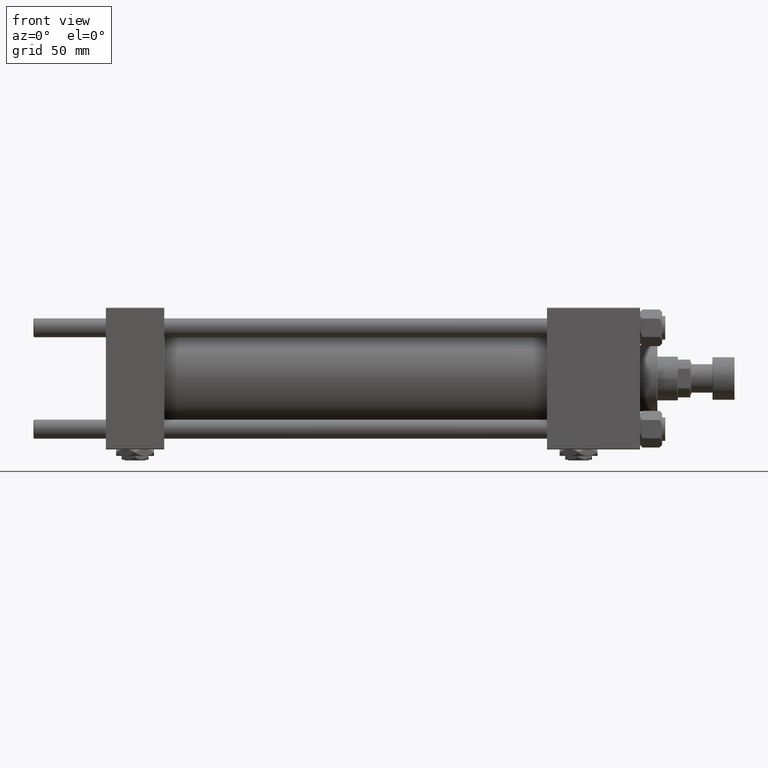
[diagram: clean part render]
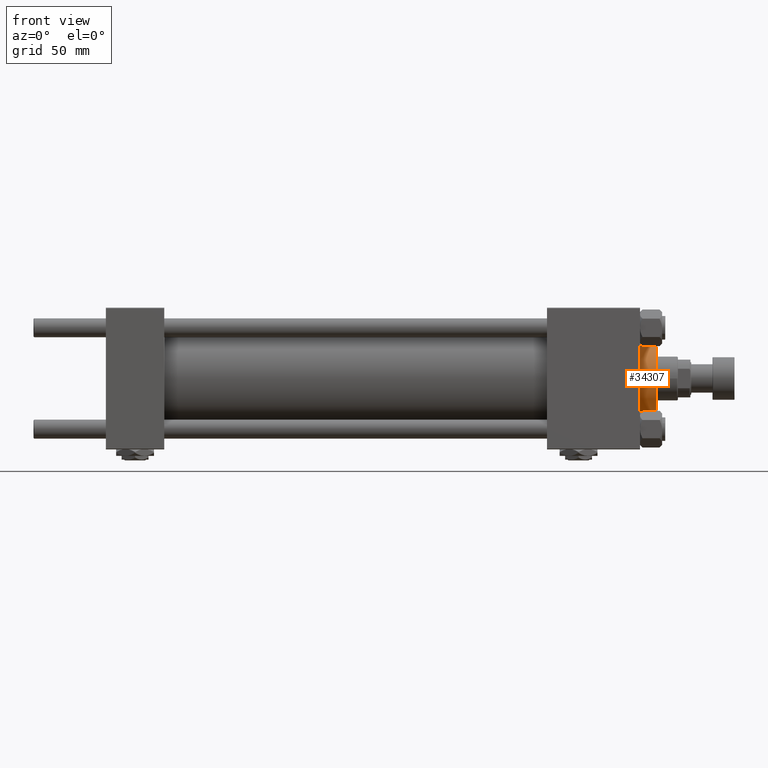
[diagram: same view with one face highlighted and labeled with its STEP entity id]
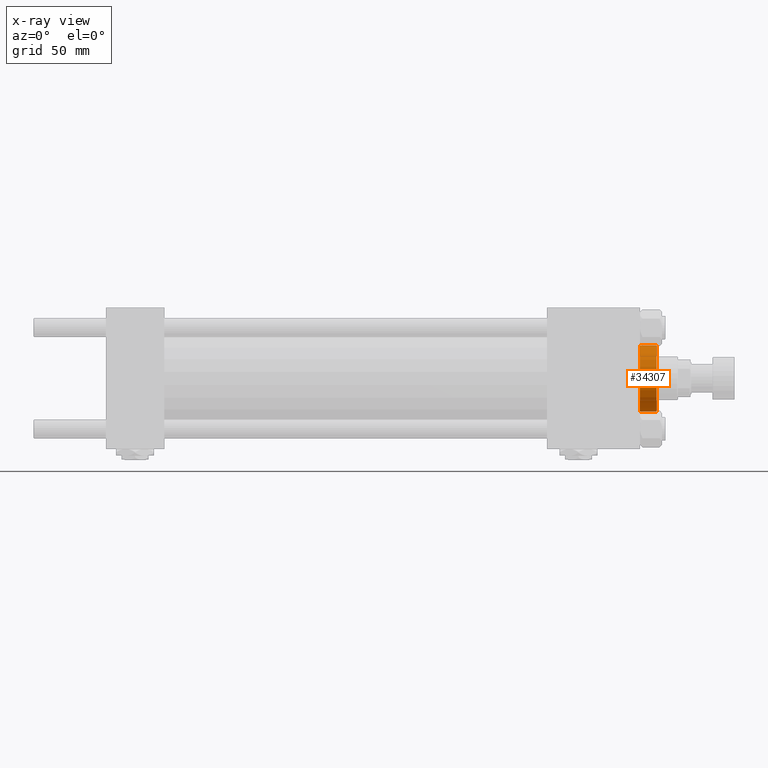
[diagram: x-ray of the same camera — body ghosted, the highlighted face saturated]
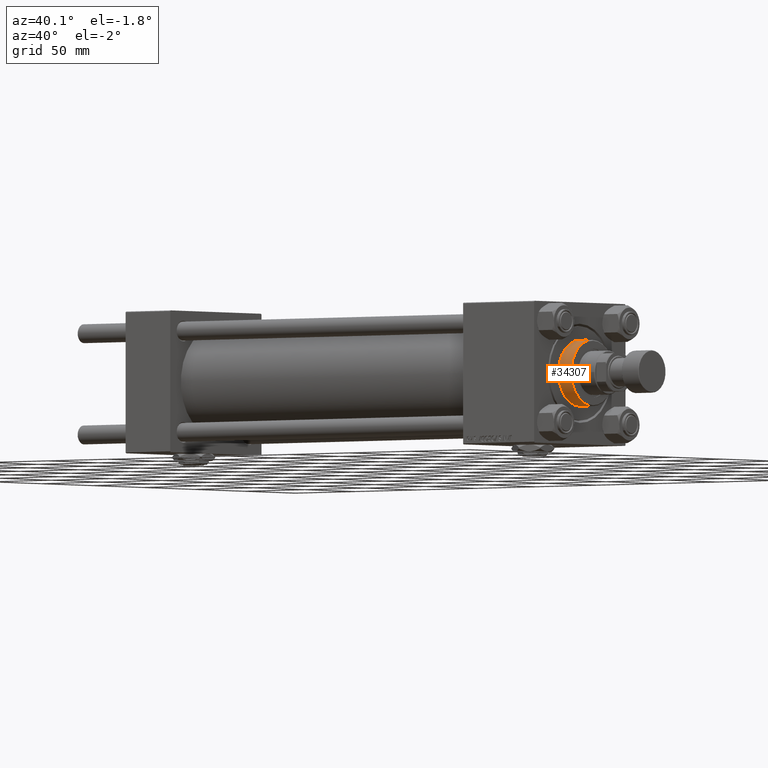
[diagram: same view with one face highlighted and labeled with its STEP entity id]
A machine part, front view. The second image highlights one B-rep face of the part: STEP entity #34307.
The next image is the same camera in x-ray: the body ghosted, the highlighted face saturated — about 0% of this face is hidden behind the body in this view.
A second angle (auxiliary view) of the same face is appended — the face is thin or edge-on in the first view.
In plain terms, the highlighted cylindrical surface (edge-blend (fillet) strip) has radius 21 mm, axis along (-1, -0, 0).
Its self-contained STEP definition (entity closure, byte-faithful):
#2030 = EDGE_CURVE ( 'NONE', #15859, #12985, #36512, .T. ) ;
#2778 = CIRCLE ( 'NONE', #45792, 21.00000000000000000 ) ;
#2796 = DIRECTION ( 'NONE',  ( 0.000000000000000000, 0.000000000000000000, 1.000000000000000000 ) ) ;
#3587 = ORIENTED_EDGE ( 'NONE', *, *, #2030, .T. ) ;
#3904 = DIRECTION ( 'NONE',  ( -0.000000000000000000, -0.000000000000000000, -1.000000000000000000 ) ) ;
#6265 = CARTESIAN_POINT ( 'NONE',  ( 21.00000000000000000, 2.571758278209441661E-15, 39.69999999999999574 ) ) ;
#7617 = DIRECTION ( 'NONE',  ( -1.000000000000000000, 0.000000000000000000, 0.000000000000000000 ) ) ;
#7634 = CARTESIAN_POINT ( 'NONE',  ( 21.00000000000000000, 2.571758278209441661E-15, 39.19999999999999574 ) ) ;
#8393 = CYLINDRICAL_SURFACE ( 'NONE', #17478, 21.00000000000000000 ) ;
#9012 = CARTESIAN_POINT ( 'NONE',  ( -21.00000000000000000, 0.000000000000000000, 39.69999999999999574 ) ) ;
#9417 = VECTOR ( 'NONE', #50425, 1000.000000000000000 ) ;
#9491 = EDGE_CURVE ( 'NONE', #12985, #27777, #15403, .T. ) ;
#11230 = EDGE_CURVE ( 'NONE', #11860, #15859, #2778, .T. ) ;
#11860 = VERTEX_POINT ( 'NONE', #7634 ) ;
#12303 = CARTESIAN_POINT ( 'NONE',  ( 0.000000000000000000, 0.000000000000000000, 39.19999999999999574 ) ) ;
#12985 = VERTEX_POINT ( 'NONE', #33236 ) ;
#13856 = ORIENTED_EDGE ( 'NONE', *, *, #49603, .F. ) ;
#14772 = EDGE_LOOP ( 'NONE', ( #13856, #22475, #3587, #21555 ) ) ;
#15403 = CIRCLE ( 'NONE', #24656, 21.00000000000000000 ) ;
#15859 = VERTEX_POINT ( 'NONE', #48154 ) ;
#17478 = AXIS2_PLACEMENT_3D ( 'NONE', #40127, #3904, #7617 ) ;
#19787 = FACE_OUTER_BOUND ( 'NONE', #14772, .T. ) ;
#21555 = ORIENTED_EDGE ( 'NONE', *, *, #9491, .T. ) ;
#22475 = ORIENTED_EDGE ( 'NONE', *, *, #11230, .T. ) ;
#23690 = DIRECTION ( 'NONE',  ( 1.000000000000000000, 0.000000000000000000, 0.000000000000000000 ) ) ;
#24656 = AXIS2_PLACEMENT_3D ( 'NONE', #39270, #2796, #34770 ) ;
#27777 = VERTEX_POINT ( 'NONE', #48474 ) ;
#33236 = CARTESIAN_POINT ( 'NONE',  ( -21.00000000000000000, 0.000000000000000000, 28.69999999999999929 ) ) ;
#34307 = ADVANCED_FACE ( 'NONE', ( #19787 ), #8393, .T. ) ;
#34770 = DIRECTION ( 'NONE',  ( 1.000000000000000000, 0.000000000000000000, 0.000000000000000000 ) ) ;
#36512 = LINE ( 'NONE', #9012, #43873 ) ;
#39270 = CARTESIAN_POINT ( 'NONE',  ( 0.000000000000000000, 0.000000000000000000, 28.69999999999999929 ) ) ;
#39549 = DIRECTION ( 'NONE',  ( 0.000000000000000000, 0.000000000000000000, -1.000000000000000000 ) ) ;
#40127 = CARTESIAN_POINT ( 'NONE',  ( 0.000000000000000000, 0.000000000000000000, 39.69999999999999574 ) ) ;
#43873 = VECTOR ( 'NONE', #48702, 1000.000000000000000 ) ;
#45792 = AXIS2_PLACEMENT_3D ( 'NONE', #12303, #39549, #23690 ) ;
#48154 = CARTESIAN_POINT ( 'NONE',  ( -21.00000000000000000, 0.000000000000000000, 39.19999999999999574 ) ) ;
#48474 = CARTESIAN_POINT ( 'NONE',  ( 21.00000000000000000, 2.571758278209441661E-15, 28.69999999999999929 ) ) ;
#48702 = DIRECTION ( 'NONE',  ( -0.000000000000000000, -0.000000000000000000, -1.000000000000000000 ) ) ;
#49603 = EDGE_CURVE ( 'NONE', #11860, #27777, #50170, .T. ) ;
#50170 = LINE ( 'NONE', #6265, #9417 ) ;
#50425 = DIRECTION ( 'NONE',  ( -0.000000000000000000, -0.000000000000000000, -1.000000000000000000 ) ) ;